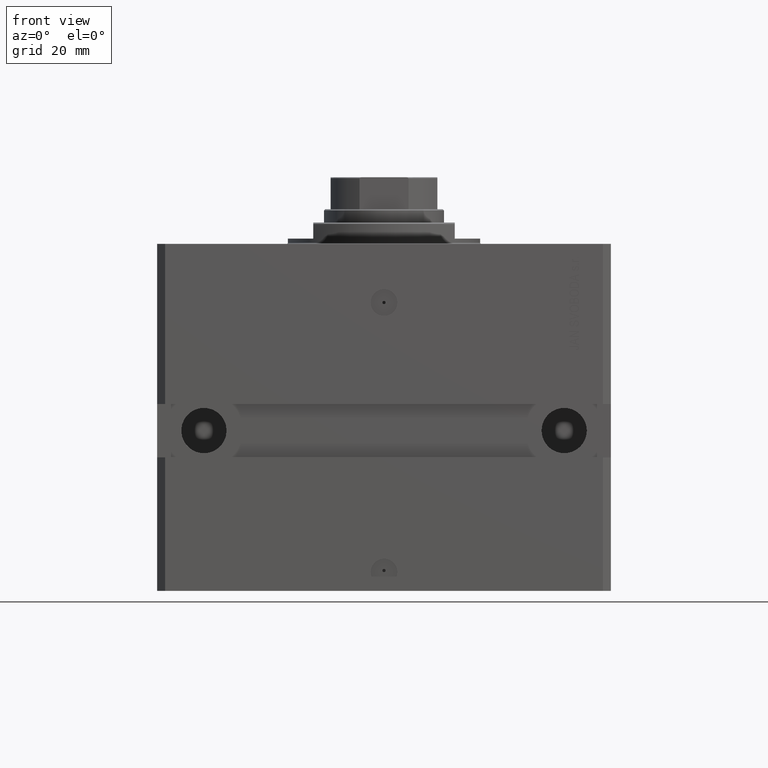
[diagram: clean part render]
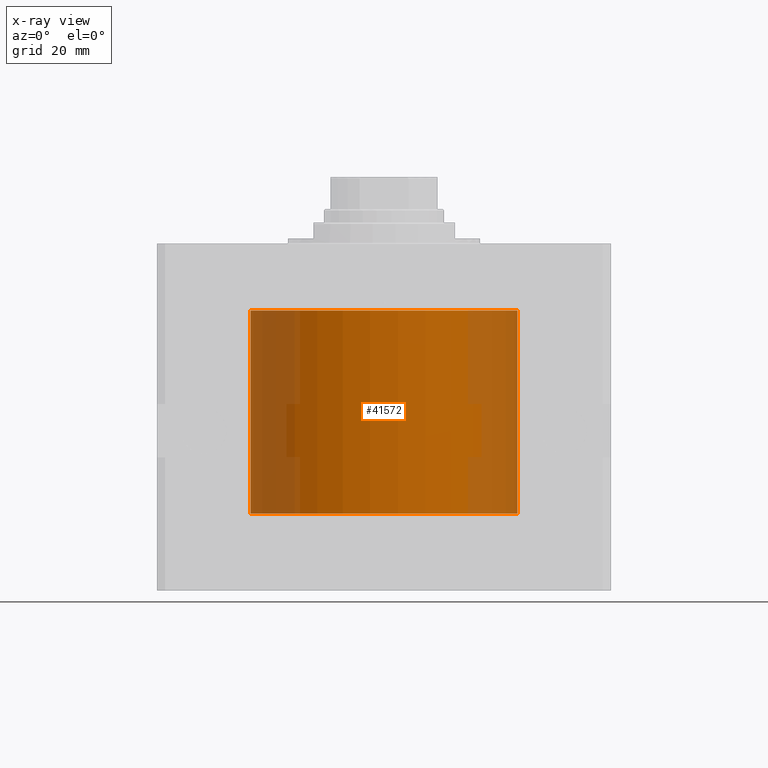
[diagram: x-ray — body ghosted, one internal face saturated and labeled with its STEP entity id]
A machine part, front view, then the same camera in x-ray: the body is ghosted and one INTERNAL B-rep face — a face not visible from any outside direction — is saturated and labeled: STEP entity #41572.
In plain terms, the highlighted cylindrical surface (partial cylindrical patch) has radius 50 mm, axis along (0, 0, 1).
Its self-contained STEP definition (entity closure, byte-faithful):
#373 = CARTESIAN_POINT ( 'NONE',  ( 0.000000000000000000, 0.000000000000000000, -24.99999999999999289 ) ) ;
#1185 = EDGE_LOOP ( 'NONE', ( #41615, #7825, #28078, #9100 ) ) ;
#2272 = VERTEX_POINT ( 'NONE', #13331 ) ;
#7825 = ORIENTED_EDGE ( 'NONE', *, *, #8016, .T. ) ;
#7876 = AXIS2_PLACEMENT_3D ( 'NONE', #373, #15078, #10688 ) ;
#8016 = EDGE_CURVE ( 'NONE', #35024, #27157, #14019, .T. ) ;
#8076 = CARTESIAN_POINT ( 'NONE',  ( 50.00000000000000000, 0.000000000000000000, -101.0999999999999943 ) ) ;
#8492 = EDGE_CURVE ( 'NONE', #35024, #14140, #45650, .T. ) ;
#9100 = ORIENTED_EDGE ( 'NONE', *, *, #12557, .F. ) ;
#10349 = DIRECTION ( 'NONE',  ( -0.000000000000000000, -0.000000000000000000, 1.000000000000000000 ) ) ;
#10688 = DIRECTION ( 'NONE',  ( 1.000000000000000000, 0.000000000000000000, 0.000000000000000000 ) ) ;
#11729 = DIRECTION ( 'NONE',  ( 1.000000000000000000, 0.000000000000000000, 0.000000000000000000 ) ) ;
#11850 = CARTESIAN_POINT ( 'NONE',  ( 50.00000000000000000, 0.000000000000000000, -101.0999999999999943 ) ) ;
#12087 = LINE ( 'NONE', #11850, #13711 ) ;
#12557 = EDGE_CURVE ( 'NONE', #14140, #2272, #12087, .T. ) ;
#13331 = CARTESIAN_POINT ( 'NONE',  ( 50.00000000000000000, 0.000000000000000000, -24.99999999999999289 ) ) ;
#13711 = VECTOR ( 'NONE', #33859, 1000.000000000000000 ) ;
#14019 = LINE ( 'NONE', #43905, #27652 ) ;
#14140 = VERTEX_POINT ( 'NONE', #8076 ) ;
#15078 = DIRECTION ( 'NONE',  ( 0.000000000000000000, 0.000000000000000000, 1.000000000000000000 ) ) ;
#19565 = DIRECTION ( 'NONE',  ( 0.000000000000000000, 0.000000000000000000, 1.000000000000000000 ) ) ;
#19840 = CARTESIAN_POINT ( 'NONE',  ( -50.00000000000000000, 6.123233995736764507E-15, -24.99999999999999289 ) ) ;
#22038 = CARTESIAN_POINT ( 'NONE',  ( 0.000000000000000000, 0.000000000000000000, -101.0999999999999943 ) ) ;
#27157 = VERTEX_POINT ( 'NONE', #19840 ) ;
#27385 = DIRECTION ( 'NONE',  ( 1.000000000000000000, 0.000000000000000000, 0.000000000000000000 ) ) ;
#27652 = VECTOR ( 'NONE', #10349, 1000.000000000000000 ) ;
#28078 = ORIENTED_EDGE ( 'NONE', *, *, #31883, .T. ) ;
#29491 = CARTESIAN_POINT ( 'NONE',  ( -50.00000000000000000, 6.123233995736764507E-15, -101.0999999999999943 ) ) ;
#30317 = FACE_OUTER_BOUND ( 'NONE', #1185, .T. ) ;
#30761 = AXIS2_PLACEMENT_3D ( 'NONE', #47160, #19565, #27385 ) ;
#31883 = EDGE_CURVE ( 'NONE', #27157, #2272, #47780, .T. ) ;
#33859 = DIRECTION ( 'NONE',  ( -0.000000000000000000, -0.000000000000000000, 1.000000000000000000 ) ) ;
#35024 = VERTEX_POINT ( 'NONE', #29491 ) ;
#41572 = ADVANCED_FACE ( 'NONE', ( #30317 ), #45283, .F. ) ;
#41615 = ORIENTED_EDGE ( 'NONE', *, *, #8492, .F. ) ;
#43905 = CARTESIAN_POINT ( 'NONE',  ( -50.00000000000000000, 6.123233995736764507E-15, -101.0999999999999943 ) ) ;
#45283 = CYLINDRICAL_SURFACE ( 'NONE', #46783, 50.00000000000000000 ) ;
#45650 = CIRCLE ( 'NONE', #30761, 50.00000000000000000 ) ;
#46783 = AXIS2_PLACEMENT_3D ( 'NONE', #22038, #48491, #11729 ) ;
#47160 = CARTESIAN_POINT ( 'NONE',  ( 0.000000000000000000, 0.000000000000000000, -101.0999999999999943 ) ) ;
#47780 = CIRCLE ( 'NONE', #7876, 50.00000000000000000 ) ;
#48491 = DIRECTION ( 'NONE',  ( -0.000000000000000000, -0.000000000000000000, 1.000000000000000000 ) ) ;